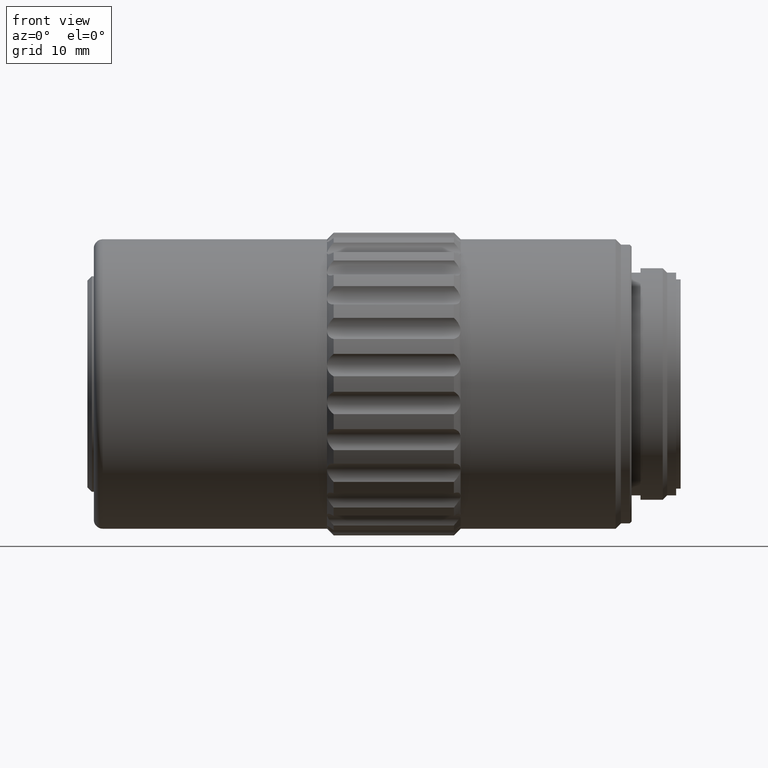
[diagram: clean part render]
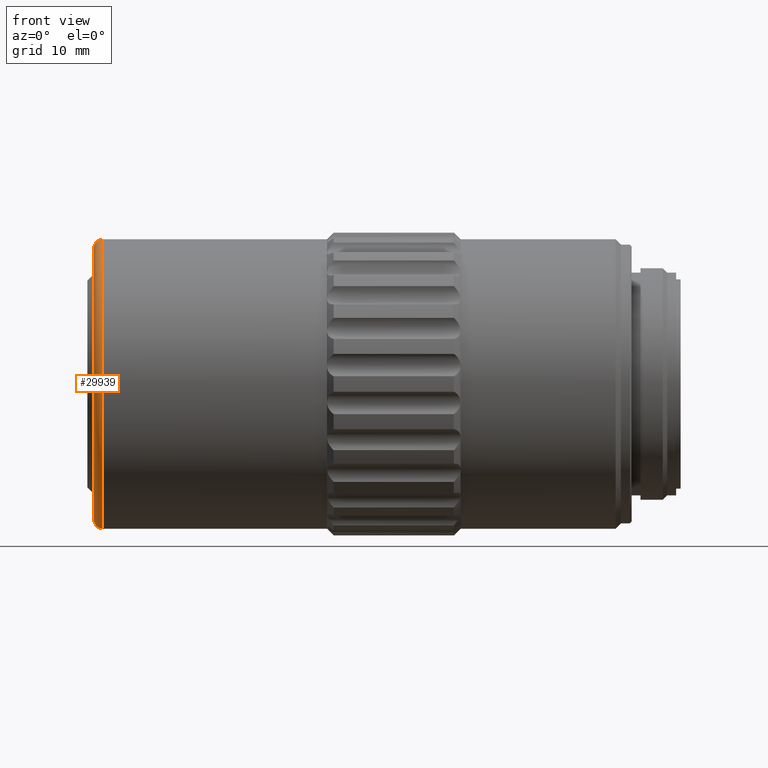
[diagram: same view with one face highlighted and labeled with its STEP entity id]
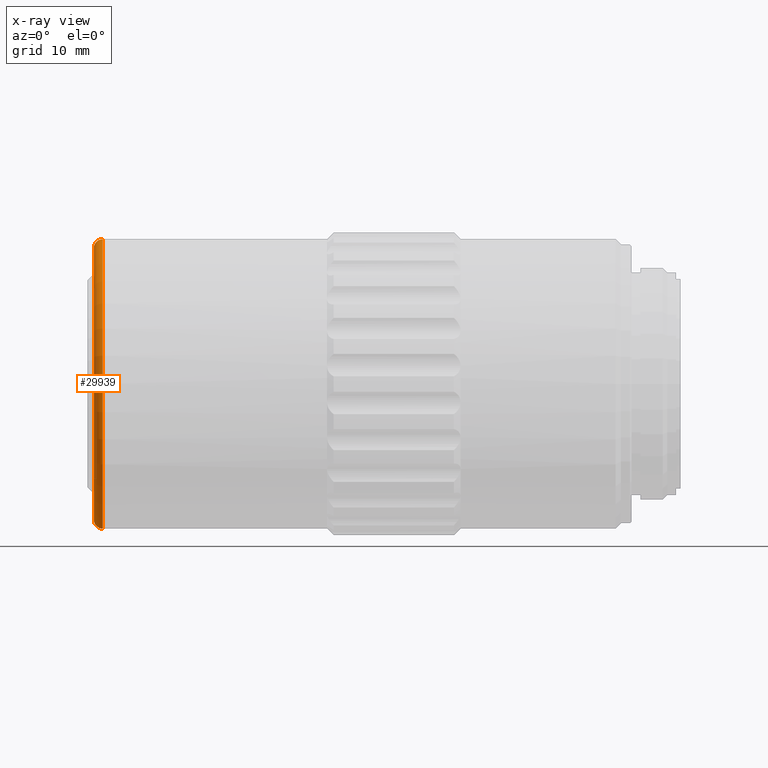
[diagram: x-ray of the same camera — body ghosted, the highlighted face saturated]
A machine part, front view. The second image highlights one B-rep face of the part: STEP entity #29939.
The next image is the same camera in x-ray: the body ghosted, the highlighted face saturated — about 0% of this face is hidden behind the body in this view.
In plain terms, the highlighted toroidal blend (fillet) surface has major radius 15.25 mm and minor (blend) radius 1 mm.
Its self-contained STEP definition (entity closure, byte-faithful):
#398 = DIRECTION ( 'NONE',  ( 0.000000000000000000, 1.224646799147353454E-16, 1.000000000000000000 ) ) ;
#1270 = DIRECTION ( 'NONE',  ( -1.000000000000000000, -0.000000000000000000, -0.000000000000000000 ) ) ;
#2330 = CARTESIAN_POINT ( 'NONE',  ( 35.61999999999999744, 1.867586368699713770E-15, 15.25000000000000000 ) ) ;
#3165 = DIRECTION ( 'NONE',  ( 0.000000000000000000, -1.000000000000000000, 0.000000000000000000 ) ) ;
#4110 = EDGE_LOOP ( 'NONE', ( #5383, #20988, #28491, #28626 ) ) ;
#4471 = CARTESIAN_POINT ( 'NONE',  ( 35.61999999999999744, 1.990051048614449313E-15, -16.25000000000000000 ) ) ;
#5383 = ORIENTED_EDGE ( 'NONE', *, *, #23234, .F. ) ;
#7108 = CARTESIAN_POINT ( 'NONE',  ( 35.61999999999999744, 0.000000000000000000, 0.000000000000000000 ) ) ;
#8355 = FACE_OUTER_BOUND ( 'NONE', #4110, .T. ) ;
#8411 = EDGE_CURVE ( 'NONE', #22801, #24154, #26480, .T. ) ;
#8605 = DIRECTION ( 'NONE',  ( 0.000000000000000000, 0.000000000000000000, -1.000000000000000000 ) ) ;
#9578 = AXIS2_PLACEMENT_3D ( 'NONE', #13372, #1270, #8605 ) ;
#9782 = CARTESIAN_POINT ( 'NONE',  ( 34.61999999999999744, 0.000000000000000000, -15.25000000000000000 ) ) ;
#11328 = EDGE_CURVE ( 'NONE', #27531, #24154, #14348, .T. ) ;
#13372 = CARTESIAN_POINT ( 'NONE',  ( 34.61999999999999744, 0.000000000000000000, 0.000000000000000000 ) ) ;
#13756 = DIRECTION ( 'NONE',  ( 0.000000000000000000, 0.000000000000000000, -1.000000000000000000 ) ) ;
#14131 = CARTESIAN_POINT ( 'NONE',  ( 35.61999999999999744, 0.000000000000000000, 16.25000000000000000 ) ) ;
#14348 = CIRCLE ( 'NONE', #19410, 16.25000000000000000 ) ;
#14729 = DIRECTION ( 'NONE',  ( 0.000000000000000000, 1.000000000000000000, -1.224646799147353207E-16 ) ) ;
#14835 = CIRCLE ( 'NONE', #26015, 1.000000000000000888 ) ;
#15727 = EDGE_CURVE ( 'NONE', #22801, #29818, #17181, .T. ) ;
#16655 = DIRECTION ( 'NONE',  ( 0.000000000000000000, 0.000000000000000000, -1.000000000000000000 ) ) ;
#16882 = AXIS2_PLACEMENT_3D ( 'NONE', #30452, #25522, #13756 ) ;
#17181 = CIRCLE ( 'NONE', #9578, 15.25000000000000000 ) ;
#19410 = AXIS2_PLACEMENT_3D ( 'NONE', #7108, #21729, #16655 ) ;
#19942 = CARTESIAN_POINT ( 'NONE',  ( 34.61999999999999744, 1.928818708657081739E-15, 15.25000000000000000 ) ) ;
#20988 = ORIENTED_EDGE ( 'NONE', *, *, #15727, .F. ) ;
#21729 = DIRECTION ( 'NONE',  ( 1.000000000000000000, 0.000000000000000000, 0.000000000000000000 ) ) ;
#22801 = VERTEX_POINT ( 'NONE', #9782 ) ;
#23053 = DIRECTION ( 'NONE',  ( 0.000000000000000000, 0.000000000000000000, -1.000000000000000000 ) ) ;
#23234 = EDGE_CURVE ( 'NONE', #29818, #27531, #14835, .T. ) ;
#24154 = VERTEX_POINT ( 'NONE', #4471 ) ;
#24943 = CARTESIAN_POINT ( 'NONE',  ( 35.61999999999999744, 0.000000000000000000, -15.25000000000000000 ) ) ;
#25522 = DIRECTION ( 'NONE',  ( 1.000000000000000000, 0.000000000000000000, 0.000000000000000000 ) ) ;
#25987 = AXIS2_PLACEMENT_3D ( 'NONE', #24943, #3165, #23053 ) ;
#26015 = AXIS2_PLACEMENT_3D ( 'NONE', #2330, #14729, #398 ) ;
#26055 = TOROIDAL_SURFACE ( 'NONE', #16882, 15.25000000000000000, 1.000000000000000000 ) ;
#26480 = CIRCLE ( 'NONE', #25987, 1.000000000000000888 ) ;
#27531 = VERTEX_POINT ( 'NONE', #14131 ) ;
#28491 = ORIENTED_EDGE ( 'NONE', *, *, #8411, .T. ) ;
#28626 = ORIENTED_EDGE ( 'NONE', *, *, #11328, .F. ) ;
#29818 = VERTEX_POINT ( 'NONE', #19942 ) ;
#29939 = ADVANCED_FACE ( 'NONE', ( #8355 ), #26055, .T. ) ;
#30452 = CARTESIAN_POINT ( 'NONE',  ( 35.61999999999999744, 0.000000000000000000, 0.000000000000000000 ) ) ;